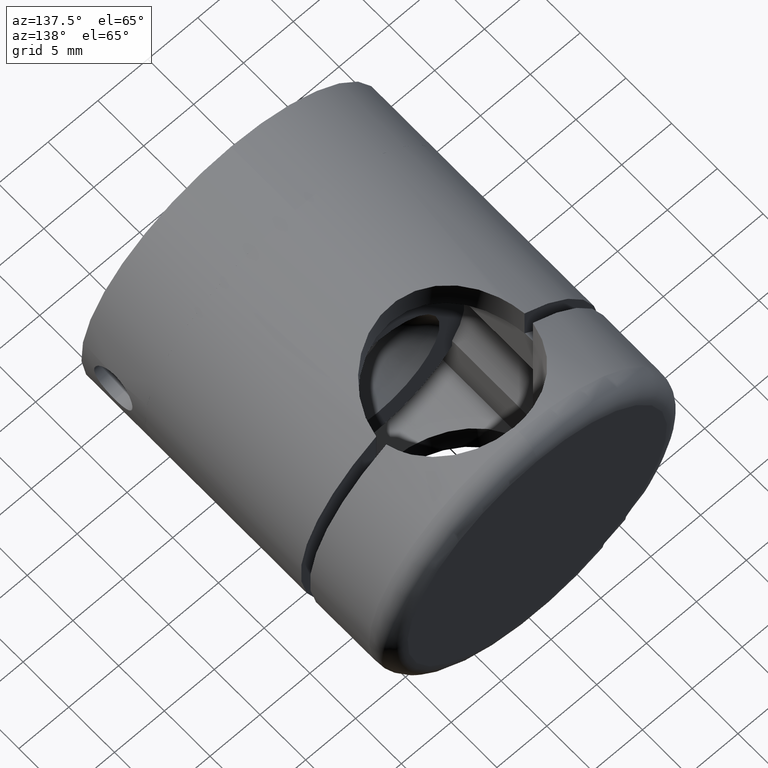
[diagram: clean part render]
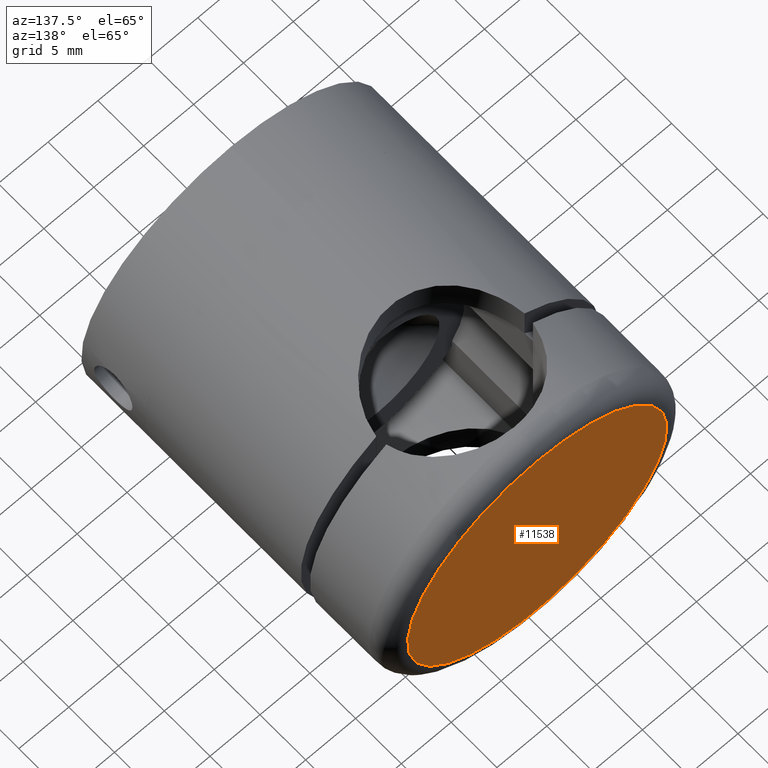
[diagram: same view with one face highlighted and labeled with its STEP entity id]
A machine part, auxiliary view. The second image highlights one B-rep face of the part: STEP entity #11538.
In plain terms, the highlighted planar face has unit normal (0, 1, 0).
Its self-contained STEP definition (entity closure, byte-faithful):
#225 = CIRCLE ( 'NONE', #16933, 13.00000000000000000 ) ;
#2679 = FACE_OUTER_BOUND ( 'NONE', #6271, .T. ) ;
#5407 = DIRECTION ( 'NONE',  ( 0.0000000000000000000, -0.0000000000000000000, -1.000000000000000000 ) ) ;
#6271 = EDGE_LOOP ( 'NONE', ( #16340 ) ) ;
#7333 = CARTESIAN_POINT ( 'NONE',  ( 0.0000000000000000000, 1.500000000000000000, -13.00000000000000000 ) ) ;
#7815 = DIRECTION ( 'NONE',  ( 0.0000000000000000000, -1.000000000000000000, 0.0000000000000000000 ) ) ;
#9468 = VERTEX_POINT ( 'NONE', #7333 ) ;
#10535 = AXIS2_PLACEMENT_3D ( 'NONE', #13157, #13340, #5407 ) ;
#11538 = ADVANCED_FACE ( 'NONE', ( #2679 ), #13103, .T. ) ;
#11768 = DIRECTION ( 'NONE',  ( 0.0000000000000000000, 0.0000000000000000000, -1.000000000000000000 ) ) ;
#13103 = PLANE ( 'NONE',  #10535 ) ;
#13157 = CARTESIAN_POINT ( 'NONE',  ( 0.0000000000000000000, 1.500000000000000000, 0.0000000000000000000 ) ) ;
#13220 = CARTESIAN_POINT ( 'NONE',  ( 0.0000000000000000000, 1.500000000000000000, 0.0000000000000000000 ) ) ;
#13340 = DIRECTION ( 'NONE',  ( 0.0000000000000000000, -1.000000000000000000, 0.0000000000000000000 ) ) ;
#15926 = EDGE_CURVE ( 'NONE', #9468, #9468, #225, .T. ) ;
#16340 = ORIENTED_EDGE ( 'NONE', *, *, #15926, .T. ) ;
#16933 = AXIS2_PLACEMENT_3D ( 'NONE', #13220, #7815, #11768 ) ;